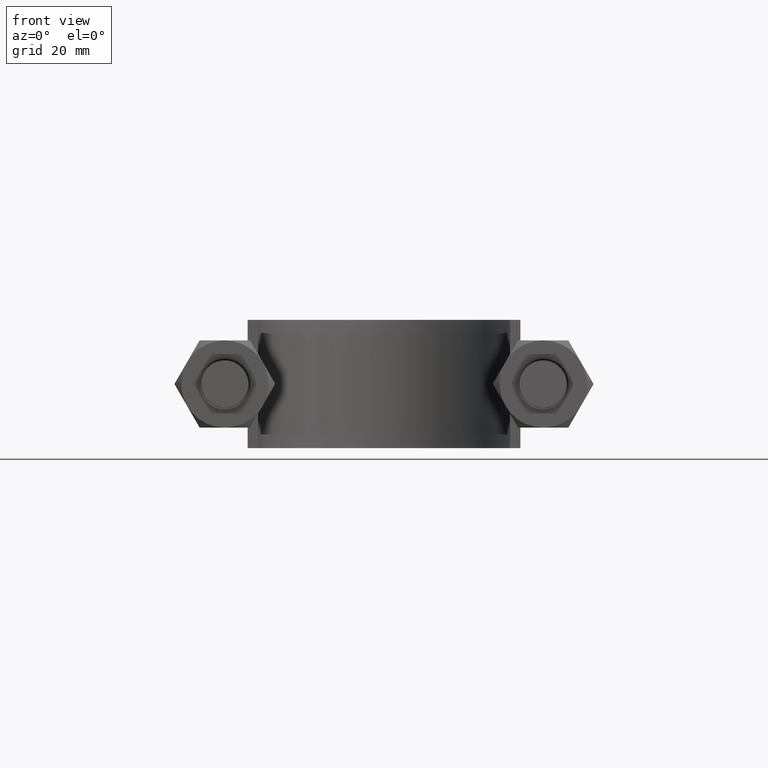
[diagram: clean part render]
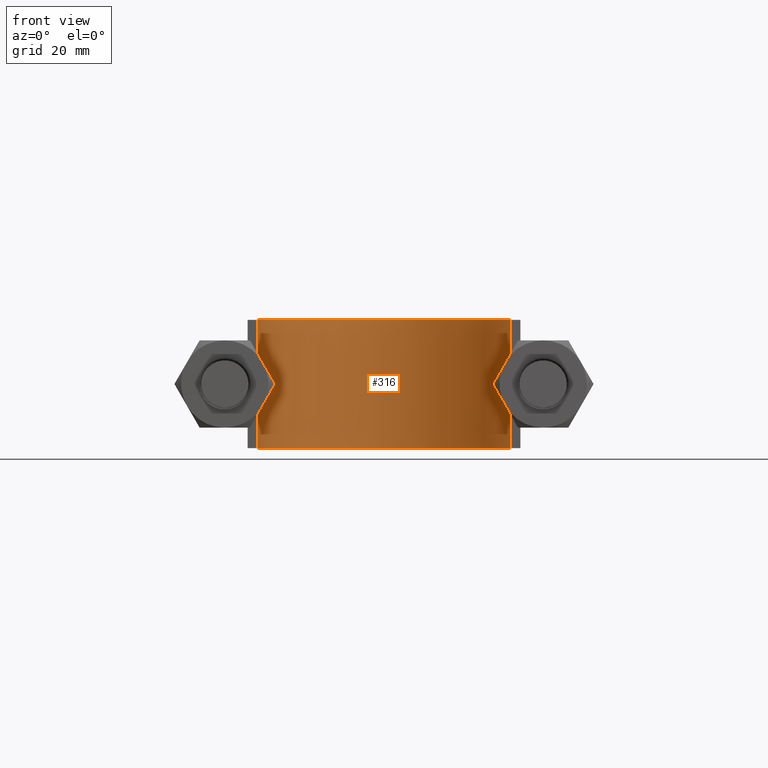
[diagram: same view with one face highlighted and labeled with its STEP entity id]
A machine part, front view. The second image highlights one B-rep face of the part: STEP entity #316.
In plain terms, the highlighted face is a SurfaceOfExtrusion surface.
Its self-contained STEP definition (entity closure, byte-faithful):
#316 = ADVANCED_FACE( '', ( #397 ), #398, .T. );
#397 = FACE_OUTER_BOUND( '', #571, .T. );
#398 = SURFACE_OF_LINEAR_EXTRUSION( '', #572, #573 );
#571 = EDGE_LOOP( '', ( #1575, #1576, #1577, #1578 ) );
#572 = B_SPLINE_CURVE_WITH_KNOTS( '', 3, ( #1579, #1580, #1581, #1582, #1583, #1584, #1585, #1586, #1587, #1588, #1589, #1590, #1591, #1592, #1593, #1594, #1595 ), .UNSPECIFIED., .F., .F., ( 4, 3, 1, 1, 1, 1, 1, 1, 1, 3, 4 ), ( -7.85424354243542, -7.00000000000000, -6.50000000000000, -6.00000000000000, -5.00000000000000, -4.00000000000000, -3.00000000000000, -2.00000000000000, -1.50000000000000, -1.00000000000000, -0.145756457564576 ), .UNSPECIFIED. );
#573 = VECTOR( '', #1596, 1000.00000000000 );
#1575 = ORIENTED_EDGE( '', *, *, #2111, .T. );
#1576 = ORIENTED_EDGE( '', *, *, #2116, .T. );
#1577 = ORIENTED_EDGE( '', *, *, #2117, .F. );
#1578 = ORIENTED_EDGE( '', *, *, #2118, .T. );
#1579 = CARTESIAN_POINT( '', ( 24.5500000000000, 54.3000000000000, 12.5000100000910 ) );
#1580 = CARTESIAN_POINT( '', ( 24.5500000000000, 62.0166666666667, 12.5000100000910 ) );
#1581 = CARTESIAN_POINT( '', ( 24.5500000000000, 69.7333333333333, 12.5000100000910 ) );
#1582 = CARTESIAN_POINT( '', ( 24.5500000000000, 77.4500000000000, 12.5000100000910 ) );
#1583 = CARTESIAN_POINT( '', ( 24.5500000000000, 79.5780025041717, 12.5000100000910 ) );
#1584 = CARTESIAN_POINT( '', ( 23.9738358905282, 83.8798607773325, 12.5000100000910 ) );
#1585 = CARTESIAN_POINT( '', ( 20.6884777838097, 91.8633071998795, 12.5000100000910 ) );
#1586 = CARTESIAN_POINT( '', ( 12.8483754366917, 99.7059313144219, 12.5000100000910 ) );
#1587 = CARTESIAN_POINT( '', ( 1.95703452673187E-014, 103.147034342789, 12.5000100000910 ) );
#1588 = CARTESIAN_POINT( '', ( -12.8483754366917, 99.7059313144219, 12.5000100000910 ) );
#1589 = CARTESIAN_POINT( '', ( -20.6884777838097, 91.8633071998795, 12.5000100000910 ) );
#1590 = CARTESIAN_POINT( '', ( -23.9738358905281, 83.8798607773325, 12.5000100000910 ) );
#1591 = CARTESIAN_POINT( '', ( -24.5500000000000, 79.5780025041717, 12.5000100000910 ) );
#1592 = CARTESIAN_POINT( '', ( -24.5500000000000, 77.4500000000000, 12.5000100000910 ) );
#1593 = CARTESIAN_POINT( '', ( -24.5500000000000, 69.7333333333333, 12.5000100000910 ) );
#1594 = CARTESIAN_POINT( '', ( -24.5500000000000, 62.0166666666667, 12.5000100000910 ) );
#1595 = CARTESIAN_POINT( '', ( -24.5500000000000, 54.3000000000000, 12.5000100000910 ) );
#1596 = DIRECTION( '', ( 0.000000000000000, 0.000000000000000, -1.00000000000000 ) );
#2111 = EDGE_CURVE( '', #2263, #2264, #2265, .T. );
#2116 = EDGE_CURVE( '', #2264, #2273, #2274, .F. );
#2117 = EDGE_CURVE( '', #2275, #2273, #2276, .T. );
#2118 = EDGE_CURVE( '', #2275, #2263, #2277, .T. );
#2263 = VERTEX_POINT( '', #2513 );
#2264 = VERTEX_POINT( '', #2514 );
#2265 = LINE( '', #2515, #2516 );
#2273 = VERTEX_POINT( '', #2565 );
#2274 = B_SPLINE_CURVE_WITH_KNOTS( '', 3, ( #2566, #2567, #2568, #2569, #2570, #2571, #2572, #2573, #2574, #2575, #2576, #2577, #2578, #2579, #2580, #2581, #2582 ), .UNSPECIFIED., .F., .F., ( 4, 3, 1, 1, 1, 1, 1, 1, 1, 3, 4 ), ( -7.85424354243542, -7.00000000000000, -6.50000000000000, -6.00000000000000, -5.00000000000000, -4.00000000000000, -3.00000000000000, -2.00000000000000, -1.50000000000000, -1.00000000000000, -0.145756457564576 ), .UNSPECIFIED. );
#2275 = VERTEX_POINT( '', #2583 );
#2276 = LINE( '', #2584, #2585 );
#2277 = B_SPLINE_CURVE_WITH_KNOTS( '', 3, ( #2586, #2587, #2588, #2589, #2590, #2591, #2592, #2593, #2594, #2595, #2596, #2597, #2598, #2599, #2600, #2601, #2602, #2603, #2604, #2605, #2606, #2607, #2608, #2609, #2610, #2611, #2612, #2613, #2614, #2615, #2616, #2617, #2618, #2619, #2620, #2621, #2622, #2623, #2624, #2625, #2626, #2627, #2628, #2629, #2630, #2631, #2632, #2633, #2634, #2635, #2636, #2637, #2638, #2639, #2640, #2641, #2642, #2643, #2644, #2645, #2646, #2647, #2648, #2649, #2650, #2651, #2652 ), .UNSPECIFIED., .F., .F., ( 4, 1, 2, 2, 2, 2, 2, 2, 2, 2, 2, 2, 2, 2, 2, 2, 2, 2, 2, 2, 2, 2, 2, 2, 2, 2, 2, 2, 2, 2, 2, 2, 1, 1, 4 ), ( 0.000000000000000, 0.0154145326467006, 0.0231217989700509, 0.0250486155508884, 0.0269754321317260, 0.0308290652934012, 0.0346826984550764, 0.0366095150359140, 0.0385363316167516, 0.0423899647784267, 0.0443167813592643, 0.0462435979401019, 0.0500972311017770, 0.0520240476826146, 0.0539508642634522, 0.0578044974251273, 0.0597313140059648, 0.0616581305868024, 0.0655117637484775, 0.0674385803293151, 0.0693653969101526, 0.0732190300718278, 0.0751458466526653, 0.0770726632335028, 0.0809262963951779, 0.0828531129760155, 0.0847799295568531, 0.0924871958802032, 0.0944140124610407, 0.0963408290418783, 0.100194462203553, 0.102121278784391, 0.104048095365228, 0.107901728526904, 0.123316261173604 ), .UNSPECIFIED. );
#2513 = CARTESIAN_POINT( '', ( -24.5500000000000, 54.3000000000000, 12.5000000000000 ) );
#2514 = CARTESIAN_POINT( '', ( -24.5500000000000, 54.3000000000000, -12.5000000000000 ) );
#2515 = CARTESIAN_POINT( '', ( -24.5500000000000, 54.3000000000000, 12.5000100000910 ) );
#2516 = VECTOR( '', #3159, 1000.00000000000 );
#2565 = CARTESIAN_POINT( '', ( 24.5500000000000, 54.3000000000000, -12.5000000000000 ) );
#2566 = CARTESIAN_POINT( '', ( 24.5500000000000, 54.3000000000000, -12.5000000000000 ) );
#2567 = CARTESIAN_POINT( '', ( 24.5500000000000, 62.0166666666667, -12.5000000000000 ) );
#2568 = CARTESIAN_POINT( '', ( 24.5500000000000, 69.7333333333333, -12.5000000000000 ) );
#2569 = CARTESIAN_POINT( '', ( 24.5500000000000, 77.4500000000000, -12.5000000000000 ) );
#2570 = CARTESIAN_POINT( '', ( 24.5500000000000, 79.5780025041717, -12.5000000000000 ) );
#2571 = CARTESIAN_POINT( '', ( 23.9738358905282, 83.8798607773325, -12.5000000000000 ) );
#2572 = CARTESIAN_POINT( '', ( 20.6884777838097, 91.8633071998795, -12.5000000000000 ) );
#2573 = CARTESIAN_POINT( '', ( 12.8483754366917, 99.7059313144219, -12.5000000000000 ) );
#2574 = CARTESIAN_POINT( '', ( 1.95703452673187E-014, 103.147034342789, -12.5000000000000 ) );
#2575 = CARTESIAN_POINT( '', ( -12.8483754366917, 99.7059313144219, -12.5000000000000 ) );
#2576 = CARTESIAN_POINT( '', ( -20.6884777838097, 91.8633071998795, -12.5000000000000 ) );
#2577 = CARTESIAN_POINT( '', ( -23.9738358905281, 83.8798607773325, -12.5000000000000 ) );
#2578 = CARTESIAN_POINT( '', ( -24.5500000000000, 79.5780025041717, -12.5000000000000 ) );
#2579 = CARTESIAN_POINT( '', ( -24.5500000000000, 77.4500000000000, -12.5000000000000 ) );
#2580 = CARTESIAN_POINT( '', ( -24.5500000000000, 69.7333333333333, -12.5000000000000 ) );
#2581 = CARTESIAN_POINT( '', ( -24.5500000000000, 62.0166666666667, -12.5000000000000 ) );
#2582 = CARTESIAN_POINT( '', ( -24.5500000000000, 54.3000000000000, -12.5000000000000 ) );
#2583 = CARTESIAN_POINT( '', ( 24.5500000000000, 54.3000000000000, 12.5000000000000 ) );
#2584 = CARTESIAN_POINT( '', ( 24.5500000000000, 54.3000000000000, 12.5000100000910 ) );
#2585 = VECTOR( '', #3162, 1000.00000000000 );
#2586 = CARTESIAN_POINT( '', ( 24.5500000000000, 54.3000000000000, 12.5000000000000 ) );
#2587 = CARTESIAN_POINT( '', ( 24.5500000000000, 59.4384221999800, 12.5000000000000 ) );
#2588 = CARTESIAN_POINT( '', ( 24.5500000000000, 67.1460554999500, 12.5000000000000 ) );
#2589 = CARTESIAN_POINT( '', ( 24.5500000000000, 74.8536887999200, 12.5000000000000 ) );
#2590 = CARTESIAN_POINT( '', ( 24.5500000000000, 78.0652026749075, 12.5000000000000 ) );
#2591 = CARTESIAN_POINT( '', ( 24.5252751330927, 78.7072641688935, 12.5000000000000 ) );
#2592 = CARTESIAN_POINT( '', ( 24.4234462537603, 79.9908760077759, 12.5000000000000 ) );
#2593 = CARTESIAN_POINT( '', ( 24.3467657946690, 80.6342202589337, 12.5000000000000 ) );
#2594 = CARTESIAN_POINT( '', ( 24.0418819320212, 82.5512040485106, 12.5000000000000 ) );
#2595 = CARTESIAN_POINT( '', ( 23.7423938741594, 83.7980756143652, 12.5000000000000 ) );
#2596 = CARTESIAN_POINT( '', ( 22.9567434107525, 86.2314557302550, 12.5000000000000 ) );
#2597 = CARTESIAN_POINT( '', ( 22.4705596365818, 87.4179573705317, 12.5000000000000 ) );
#2598 = CARTESIAN_POINT( '', ( 21.5925627875953, 89.1496193486760, 12.5000000000000 ) );
#2599 = CARTESIAN_POINT( '', ( 21.2766071075014, 89.7149736051726, 12.5000000000000 ) );
#2600 = CARTESIAN_POINT( '', ( 20.6053719022684, 90.8105348664258, 12.5000000000000 ) );
#2601 = CARTESIAN_POINT( '', ( 20.2492833691970, 91.3426982596921, 12.5000000000000 ) );
#2602 = CARTESIAN_POINT( '', ( 19.1215068537777, 92.8937876646727, 12.5000000000000 ) );
#2603 = CARTESIAN_POINT( '', ( 18.2907926568853, 93.8676826796255, 12.5000000000000 ) );
#2604 = CARTESIAN_POINT( '', ( 16.9250762587395, 95.2372481605127, 12.5000000000000 ) );
#2605 = CARTESIAN_POINT( '', ( 16.4483141734126, 95.6794580763296, 12.5000000000000 ) );
#2606 = CARTESIAN_POINT( '', ( 15.4703087185620, 96.5179842065183, 12.5000000000000 ) );
#2607 = CARTESIAN_POINT( '', ( 14.9674075928234, 96.9161548866917, 12.5000000000000 ) );
#2608 = CARTESIAN_POINT( '', ( 13.4174319314452, 98.0480315871902, 12.5000000000000 ) );
#2609 = CARTESIAN_POINT( '', ( 12.3291014903936, 98.7191271240917, 12.5000000000000 ) );
#2610 = CARTESIAN_POINT( '', ( 10.6113550739498, 99.5963928065052, 12.5000000000000 ) );
#2611 = CARTESIAN_POINT( '', ( 10.0221200459752, 99.8683847934330, 12.5000000000000 ) );
#2612 = CARTESIAN_POINT( '', ( 8.82789979738709, 100.363314078471, 12.5000000000000 ) );
#2613 = CARTESIAN_POINT( '', ( 8.22453257139356, 100.585861709962, 12.5000000000000 ) );
#2614 = CARTESIAN_POINT( '', ( 6.39627757875420, 101.181214530966, 12.5000000000000 ) );
#2615 = CARTESIAN_POINT( '', ( 5.15338195845829, 101.482308901390, 12.5000000000000 ) );
#2616 = CARTESIAN_POINT( '', ( 3.25266287101839, 101.789095428283, 12.5000000000000 ) );
#2617 = CARTESIAN_POINT( '', ( 2.61299113566843, 101.867071354940, 12.5000000000000 ) );
#2618 = CARTESIAN_POINT( '', ( 1.32093241036630, 101.972388560719, 12.5000000000000 ) );
#2619 = CARTESIAN_POINT( '', ( 0.676406080425034, 101.999046675169, 12.5000000000000 ) );
#2620 = CARTESIAN_POINT( '', ( -1.24870371014289, 102.001831348721, 12.5000000000000 ) );
#2621 = CARTESIAN_POINT( '', ( -2.52265182528387, 101.901467818298, 12.5000000000000 ) );
#2622 = CARTESIAN_POINT( '', ( -4.41989760294861, 101.603117496314, 12.5000000000000 ) );
#2623 = CARTESIAN_POINT( '', ( -5.05001948103531, 101.478882110562, 12.5000000000000 ) );
#2624 = CARTESIAN_POINT( '', ( -6.30559148152663, 101.179922232146, 12.5000000000000 ) );
#2625 = CARTESIAN_POINT( '', ( -6.93138081059488, 101.004801946248, 12.5000000000000 ) );
#2626 = CARTESIAN_POINT( '', ( -8.76889753233642, 100.412561446254, 12.5000000000000 ) );
#2627 = CARTESIAN_POINT( '', ( -9.95225725658831, 99.9267801345634, 12.5000000000000 ) );
#2628 = CARTESIAN_POINT( '', ( -11.6646188489648, 99.0612380840055, 12.5000000000000 ) );
#2629 = CARTESIAN_POINT( '', ( -12.2248697137769, 98.7497158527538, 12.5000000000000 ) );
#2630 = CARTESIAN_POINT( '', ( -13.3236776153922, 98.0792985269674, 12.5000000000000 ) );
#2631 = CARTESIAN_POINT( '', ( -13.8646027205756, 97.7187643121761, 12.5000000000000 ) );
#2632 = CARTESIAN_POINT( '', ( -15.4323331862349, 96.5816103428784, 12.5000000000000 ) );
#2633 = CARTESIAN_POINT( '', ( -16.4066904175185, 95.7499313198934, 12.5000000000000 ) );
#2634 = CARTESIAN_POINT( '', ( -17.7664797273136, 94.3966709647585, 12.5000000000000 ) );
#2635 = CARTESIAN_POINT( '', ( -18.2026751411942, 93.9278462929921, 12.5000000000000 ) );
#2636 = CARTESIAN_POINT( '', ( -19.0403725195660, 92.9541411916242, 12.5000000000000 ) );
#2637 = CARTESIAN_POINT( '', ( -19.4425779981799, 92.4483024401625, 12.5000000000000 ) );
#2638 = CARTESIAN_POINT( '', ( -21.3557319354796, 89.8353834350350, 12.5000000000000 ) );
#2639 = CARTESIAN_POINT( '', ( -22.5176023500941, 87.5595033352519, 12.5000000000000 ) );
#2640 = CARTESIAN_POINT( '', ( -23.5216696114527, 84.4890361381941, 12.5000000000000 ) );
#2641 = CARTESIAN_POINT( '', ( -23.6990122608683, 83.8647462965356, 12.5000000000000 ) );
#2642 = CARTESIAN_POINT( '', ( -24.0024245935730, 82.6147239867793, 12.5000000000000 ) );
#2643 = CARTESIAN_POINT( '', ( -24.1294131227665, 81.9864283058244, 12.5000000000000 ) );
#2644 = CARTESIAN_POINT( '', ( -24.4371992964721, 80.0918170449202, 12.5000000000000 ) );
#2645 = CARTESIAN_POINT( '', ( -24.5457173567177, 78.8158968179808, 12.5000000000000 ) );
#2646 = CARTESIAN_POINT( '', ( -24.5519571685428, 76.8812155098234, 12.5000000000000 ) );
#2647 = CARTESIAN_POINT( '', ( -24.5500000000000, 76.2357852822297, 12.5000000000000 ) );
#2648 = CARTESIAN_POINT( '', ( -24.5500000000000, 74.9454449715102, 12.5000000000000 ) );
#2649 = CARTESIAN_POINT( '', ( -24.5500000000000, 73.0099345054311, 12.5000000000000 ) );
#2650 = CARTESIAN_POINT( '', ( -24.5500000000000, 65.9130627964745, 12.5000000000000 ) );
#2651 = CARTESIAN_POINT( '', ( -24.5500000000000, 59.4613612428776, 12.5000000000000 ) );
#2652 = CARTESIAN_POINT( '', ( -24.5500000000000, 54.3000000000000, 12.5000000000000 ) );
#3159 = DIRECTION( '', ( 0.000000000000000, 0.000000000000000, -1.00000000000000 ) );
#3162 = DIRECTION( '', ( 0.000000000000000, 0.000000000000000, -1.00000000000000 ) );